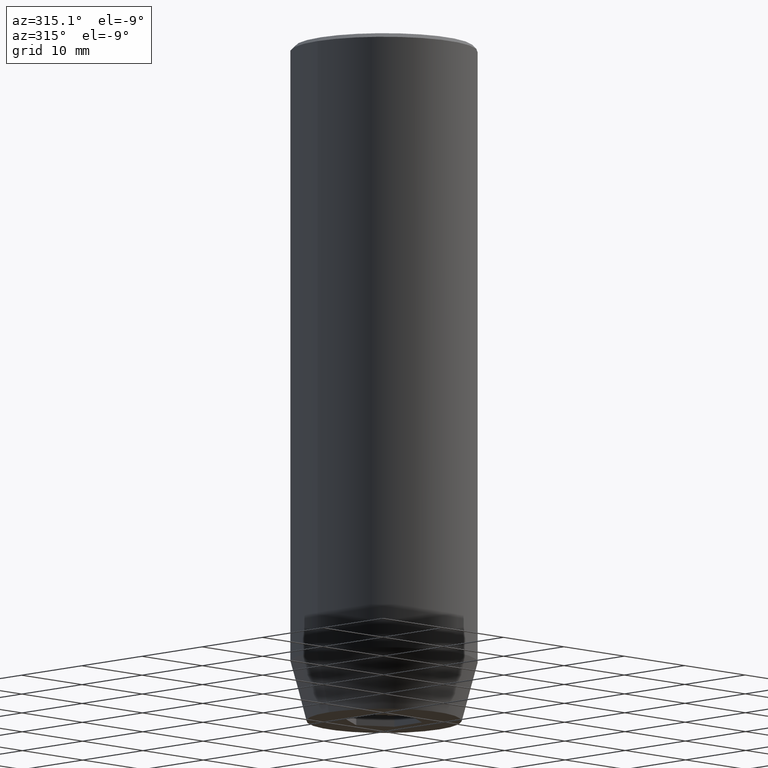
[diagram: clean part render]
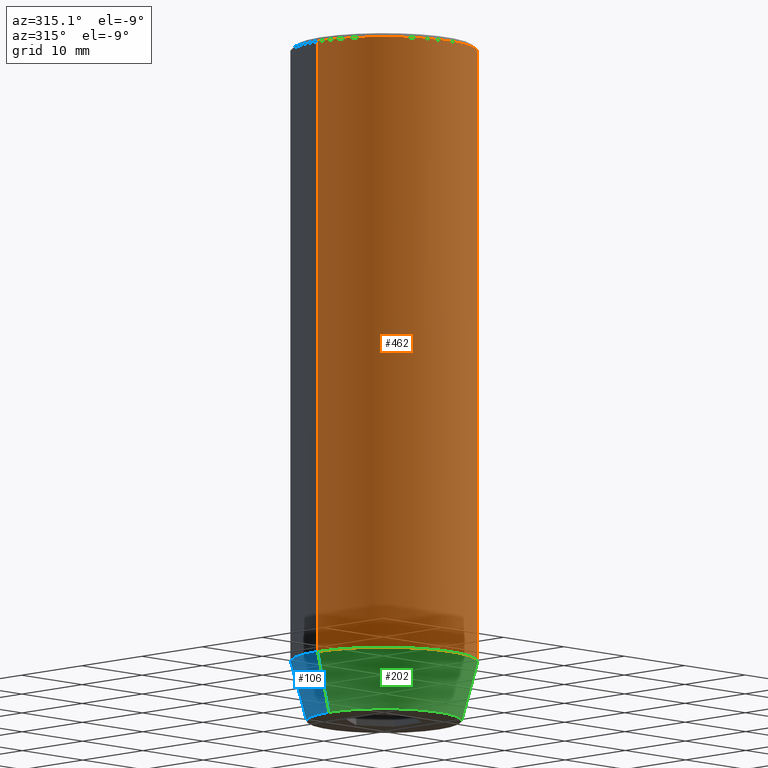
[diagram: same view with three faces highlighted in distinct colors, each labeled with its STEP entity id]
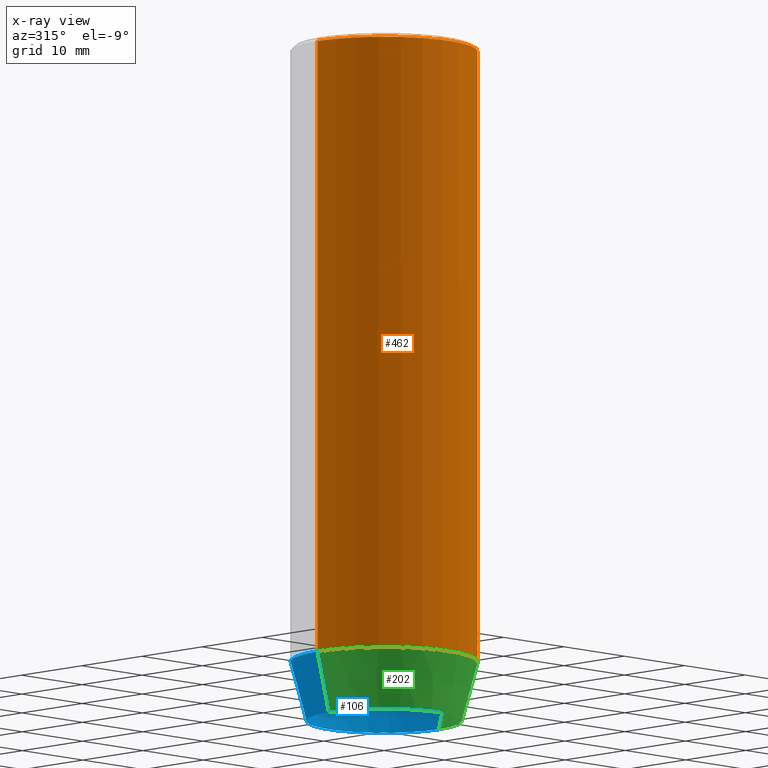
[diagram: x-ray of the same camera — body ghosted, the three highlighted faces saturated]
A machine part, auxiliary view with three faces highlighted in distinct colors.
The next image is the same camera in x-ray (body ghosted, the three faces saturated) — at least one of them is partly hidden behind the body in this view.
Their STEP definitions:

[orange] entity #462 — the highlighted cylindrical surface (partial cylindrical patch) has radius 11 mm, axis along (-0, -0, 1).
#29 = VERTEX_POINT ( 'NONE', #75 ) ;
#36 = CARTESIAN_POINT ( 'NONE',  ( 0.000000000000000000, 0.000000000000000000, -0.4999999999999935052 ) ) ;
#37 = CYLINDRICAL_SURFACE ( 'NONE', #292, 11.00000000000000000 ) ;
#75 = CARTESIAN_POINT ( 'NONE',  ( -11.00000000000000000, 1.347111479062088405E-15, -0.4999999999999935052 ) ) ;
#88 = DIRECTION ( 'NONE',  ( -0.000000000000000000, -0.000000000000000000, 1.000000000000000000 ) ) ;
#92 = CARTESIAN_POINT ( 'NONE',  ( -11.00000000000000000, 1.347111479062088405E-15, 0.000000000000000000 ) ) ;
#109 = VECTOR ( 'NONE', #235, 1000.000000000000000 ) ;
#112 = CARTESIAN_POINT ( 'NONE',  ( 11.00000000000000000, 0.000000000000000000, -0.4999999999999935052 ) ) ;
#114 = EDGE_CURVE ( 'NONE', #164, #29, #414, .T. ) ;
#144 = LINE ( 'NONE', #150, #109 ) ;
#150 = CARTESIAN_POINT ( 'NONE',  ( 11.00000000000000000, 0.000000000000000000, 0.000000000000000000 ) ) ;
#164 = VERTEX_POINT ( 'NONE', #391 ) ;
#213 = EDGE_CURVE ( 'NONE', #411, #29, #341, .T. ) ;
#222 = DIRECTION ( 'NONE',  ( 1.000000000000000000, 0.000000000000000000, 0.000000000000000000 ) ) ;
#235 = DIRECTION ( 'NONE',  ( -0.000000000000000000, -0.000000000000000000, 1.000000000000000000 ) ) ;
#246 = CARTESIAN_POINT ( 'NONE',  ( 11.00000000000000000, 0.000000000000000000, -73.00000000000001421 ) ) ;
#259 = VECTOR ( 'NONE', #472, 1000.000000000000000 ) ;
#291 = CIRCLE ( 'NONE', #348, 11.00000000000000000 ) ;
#292 = AXIS2_PLACEMENT_3D ( 'NONE', #549, #88, #222 ) ;
#304 = ORIENTED_EDGE ( 'NONE', *, *, #213, .T. ) ;
#313 = DIRECTION ( 'NONE',  ( 1.000000000000000000, 0.000000000000000000, 0.000000000000000000 ) ) ;
#338 = EDGE_CURVE ( 'NONE', #164, #428, #291, .T. ) ;
#341 = CIRCLE ( 'NONE', #370, 11.00000000000000000 ) ;
#348 = AXIS2_PLACEMENT_3D ( 'NONE', #584, #452, #313 ) ;
#370 = AXIS2_PLACEMENT_3D ( 'NONE', #36, #395, #580 ) ;
#391 = CARTESIAN_POINT ( 'NONE',  ( -11.00000000000000000, 1.347111479062088405E-15, -73.00000000000001421 ) ) ;
#395 = DIRECTION ( 'NONE',  ( 0.000000000000000000, 0.000000000000000000, -1.000000000000000000 ) ) ;
#403 = FACE_OUTER_BOUND ( 'NONE', #542, .T. ) ;
#411 = VERTEX_POINT ( 'NONE', #112 ) ;
#414 = LINE ( 'NONE', #92, #259 ) ;
#428 = VERTEX_POINT ( 'NONE', #246 ) ;
#452 = DIRECTION ( 'NONE',  ( -0.000000000000000000, -0.000000000000000000, 1.000000000000000000 ) ) ;
#462 = ADVANCED_FACE ( 'NONE', ( #403 ), #37, .T. ) ;
#472 = DIRECTION ( 'NONE',  ( -0.000000000000000000, -0.000000000000000000, 1.000000000000000000 ) ) ;
#495 = ORIENTED_EDGE ( 'NONE', *, *, #338, .T. ) ;
#542 = EDGE_LOOP ( 'NONE', ( #552, #495, #575, #304 ) ) ;
#549 = CARTESIAN_POINT ( 'NONE',  ( 0.000000000000000000, 0.000000000000000000, 0.000000000000000000 ) ) ;
#552 = ORIENTED_EDGE ( 'NONE', *, *, #114, .F. ) ;
#572 = EDGE_CURVE ( 'NONE', #428, #411, #144, .T. ) ;
#575 = ORIENTED_EDGE ( 'NONE', *, *, #572, .T. ) ;
#580 = DIRECTION ( 'NONE',  ( 1.000000000000000000, 0.000000000000000000, 0.000000000000000000 ) ) ;
#584 = CARTESIAN_POINT ( 'NONE',  ( 0.000000000000000000, 0.000000000000000000, -73.00000000000001421 ) ) ;

[blue] entity #106 — the highlighted conical surface has half-angle 15 deg.
#7 = CARTESIAN_POINT ( 'NONE',  ( 9.124355652982137244, 0.000000000000000000, -80.00000000000001421 ) ) ;
#8 = DIRECTION ( 'NONE',  ( 0.2588190451025209060, 0.000000000000000000, 0.9659258262890682012 ) ) ;
#9 = AXIS2_PLACEMENT_3D ( 'NONE', #279, #333, #516 ) ;
#46 = ORIENTED_EDGE ( 'NONE', *, *, #357, .T. ) ;
#60 = DIRECTION ( 'NONE',  ( -0.000000000000000000, -0.000000000000000000, 1.000000000000000000 ) ) ;
#61 = AXIS2_PLACEMENT_3D ( 'NONE', #242, #60, #558 ) ;
#77 = LINE ( 'NONE', #540, #120 ) ;
#94 = CARTESIAN_POINT ( 'NONE',  ( 0.000000000000000000, 0.000000000000000000, -80.00000000000001421 ) ) ;
#106 = ADVANCED_FACE ( 'NONE', ( #191 ), #486, .T. ) ;
#120 = VECTOR ( 'NONE', #8, 1000.000000000000000 ) ;
#122 = EDGE_CURVE ( 'NONE', #428, #164, #128, .T. ) ;
#128 = CIRCLE ( 'NONE', #61, 11.00000000000000000 ) ;
#164 = VERTEX_POINT ( 'NONE', #391 ) ;
#175 = DIRECTION ( 'NONE',  ( -0.000000000000000000, -0.000000000000000000, 1.000000000000000000 ) ) ;
#191 = FACE_OUTER_BOUND ( 'NONE', #200, .T. ) ;
#199 = VECTOR ( 'NONE', #420, 1000.000000000000000 ) ;
#200 = EDGE_LOOP ( 'NONE', ( #46, #425, #583, #205 ) ) ;
#205 = ORIENTED_EDGE ( 'NONE', *, *, #244, .F. ) ;
#218 = VERTEX_POINT ( 'NONE', #433 ) ;
#242 = CARTESIAN_POINT ( 'NONE',  ( 0.000000000000000000, 0.000000000000000000, -73.00000000000001421 ) ) ;
#244 = EDGE_CURVE ( 'NONE', #506, #428, #77, .T. ) ;
#246 = CARTESIAN_POINT ( 'NONE',  ( 11.00000000000000000, 0.000000000000000000, -73.00000000000001421 ) ) ;
#269 = CIRCLE ( 'NONE', #422, 9.124355652982137244 ) ;
#279 = CARTESIAN_POINT ( 'NONE',  ( 0.000000000000000000, 0.000000000000000000, -73.00000000000001421 ) ) ;
#319 = DIRECTION ( 'NONE',  ( 1.000000000000000000, 0.000000000000000000, 0.000000000000000000 ) ) ;
#321 = CARTESIAN_POINT ( 'NONE',  ( -11.00000000000000000, 1.347111479062088405E-15, -73.00000000000001421 ) ) ;
#333 = DIRECTION ( 'NONE',  ( -0.000000000000000000, -0.000000000000000000, 1.000000000000000000 ) ) ;
#357 = EDGE_CURVE ( 'NONE', #506, #218, #269, .T. ) ;
#391 = CARTESIAN_POINT ( 'NONE',  ( -11.00000000000000000, 1.347111479062088405E-15, -73.00000000000001421 ) ) ;
#410 = LINE ( 'NONE', #321, #199 ) ;
#420 = DIRECTION ( 'NONE',  ( -0.2588190451025209060, 3.169619151431766790E-17, 0.9659258262890682012 ) ) ;
#422 = AXIS2_PLACEMENT_3D ( 'NONE', #94, #175, #319 ) ;
#425 = ORIENTED_EDGE ( 'NONE', *, *, #563, .T. ) ;
#428 = VERTEX_POINT ( 'NONE', #246 ) ;
#433 = CARTESIAN_POINT ( 'NONE',  ( -9.124355652982137244, 1.232261386766375901E-15, -80.00000000000001421 ) ) ;
#486 = CONICAL_SURFACE ( 'NONE', #9, 11.00000000000000000, 0.2617993877991495744 ) ;
#506 = VERTEX_POINT ( 'NONE', #7 ) ;
#516 = DIRECTION ( 'NONE',  ( 1.000000000000000000, 0.000000000000000000, 0.000000000000000000 ) ) ;
#540 = CARTESIAN_POINT ( 'NONE',  ( 11.00000000000000000, 0.000000000000000000, -73.00000000000001421 ) ) ;
#558 = DIRECTION ( 'NONE',  ( 1.000000000000000000, 0.000000000000000000, 0.000000000000000000 ) ) ;
#563 = EDGE_CURVE ( 'NONE', #218, #164, #410, .T. ) ;
#583 = ORIENTED_EDGE ( 'NONE', *, *, #122, .F. ) ;

[green] entity #202 — the highlighted conical surface has half-angle 15 deg.
#7 = CARTESIAN_POINT ( 'NONE',  ( 9.124355652982137244, 0.000000000000000000, -80.00000000000001421 ) ) ;
#8 = DIRECTION ( 'NONE',  ( 0.2588190451025209060, 0.000000000000000000, 0.9659258262890682012 ) ) ;
#24 = ORIENTED_EDGE ( 'NONE', *, *, #563, .F. ) ;
#49 = EDGE_LOOP ( 'NONE', ( #24, #195, #154, #309 ) ) ;
#77 = LINE ( 'NONE', #540, #120 ) ;
#116 = DIRECTION ( 'NONE',  ( 1.000000000000000000, 0.000000000000000000, 0.000000000000000000 ) ) ;
#120 = VECTOR ( 'NONE', #8, 1000.000000000000000 ) ;
#154 = ORIENTED_EDGE ( 'NONE', *, *, #244, .T. ) ;
#162 = AXIS2_PLACEMENT_3D ( 'NONE', #387, #532, #116 ) ;
#164 = VERTEX_POINT ( 'NONE', #391 ) ;
#182 = CONICAL_SURFACE ( 'NONE', #162, 11.00000000000000000, 0.2617993877991495744 ) ;
#195 = ORIENTED_EDGE ( 'NONE', *, *, #241, .T. ) ;
#199 = VECTOR ( 'NONE', #420, 1000.000000000000000 ) ;
#202 = ADVANCED_FACE ( 'NONE', ( #440 ), #182, .T. ) ;
#218 = VERTEX_POINT ( 'NONE', #433 ) ;
#227 = DIRECTION ( 'NONE',  ( -0.000000000000000000, -0.000000000000000000, 1.000000000000000000 ) ) ;
#241 = EDGE_CURVE ( 'NONE', #218, #506, #484, .T. ) ;
#244 = EDGE_CURVE ( 'NONE', #506, #428, #77, .T. ) ;
#246 = CARTESIAN_POINT ( 'NONE',  ( 11.00000000000000000, 0.000000000000000000, -73.00000000000001421 ) ) ;
#291 = CIRCLE ( 'NONE', #348, 11.00000000000000000 ) ;
#309 = ORIENTED_EDGE ( 'NONE', *, *, #338, .F. ) ;
#310 = CARTESIAN_POINT ( 'NONE',  ( 0.000000000000000000, 0.000000000000000000, -80.00000000000001421 ) ) ;
#313 = DIRECTION ( 'NONE',  ( 1.000000000000000000, 0.000000000000000000, 0.000000000000000000 ) ) ;
#321 = CARTESIAN_POINT ( 'NONE',  ( -11.00000000000000000, 1.347111479062088405E-15, -73.00000000000001421 ) ) ;
#338 = EDGE_CURVE ( 'NONE', #164, #428, #291, .T. ) ;
#348 = AXIS2_PLACEMENT_3D ( 'NONE', #584, #452, #313 ) ;
#387 = CARTESIAN_POINT ( 'NONE',  ( 0.000000000000000000, 0.000000000000000000, -73.00000000000001421 ) ) ;
#391 = CARTESIAN_POINT ( 'NONE',  ( -11.00000000000000000, 1.347111479062088405E-15, -73.00000000000001421 ) ) ;
#406 = DIRECTION ( 'NONE',  ( 1.000000000000000000, 0.000000000000000000, 0.000000000000000000 ) ) ;
#410 = LINE ( 'NONE', #321, #199 ) ;
#420 = DIRECTION ( 'NONE',  ( -0.2588190451025209060, 3.169619151431766790E-17, 0.9659258262890682012 ) ) ;
#428 = VERTEX_POINT ( 'NONE', #246 ) ;
#433 = CARTESIAN_POINT ( 'NONE',  ( -9.124355652982137244, 1.232261386766375901E-15, -80.00000000000001421 ) ) ;
#440 = FACE_OUTER_BOUND ( 'NONE', #49, .T. ) ;
#452 = DIRECTION ( 'NONE',  ( -0.000000000000000000, -0.000000000000000000, 1.000000000000000000 ) ) ;
#484 = CIRCLE ( 'NONE', #556, 9.124355652982137244 ) ;
#506 = VERTEX_POINT ( 'NONE', #7 ) ;
#532 = DIRECTION ( 'NONE',  ( -0.000000000000000000, -0.000000000000000000, 1.000000000000000000 ) ) ;
#540 = CARTESIAN_POINT ( 'NONE',  ( 11.00000000000000000, 0.000000000000000000, -73.00000000000001421 ) ) ;
#556 = AXIS2_PLACEMENT_3D ( 'NONE', #310, #227, #406 ) ;
#563 = EDGE_CURVE ( 'NONE', #218, #164, #410, .T. ) ;
#584 = CARTESIAN_POINT ( 'NONE',  ( 0.000000000000000000, 0.000000000000000000, -73.00000000000001421 ) ) ;